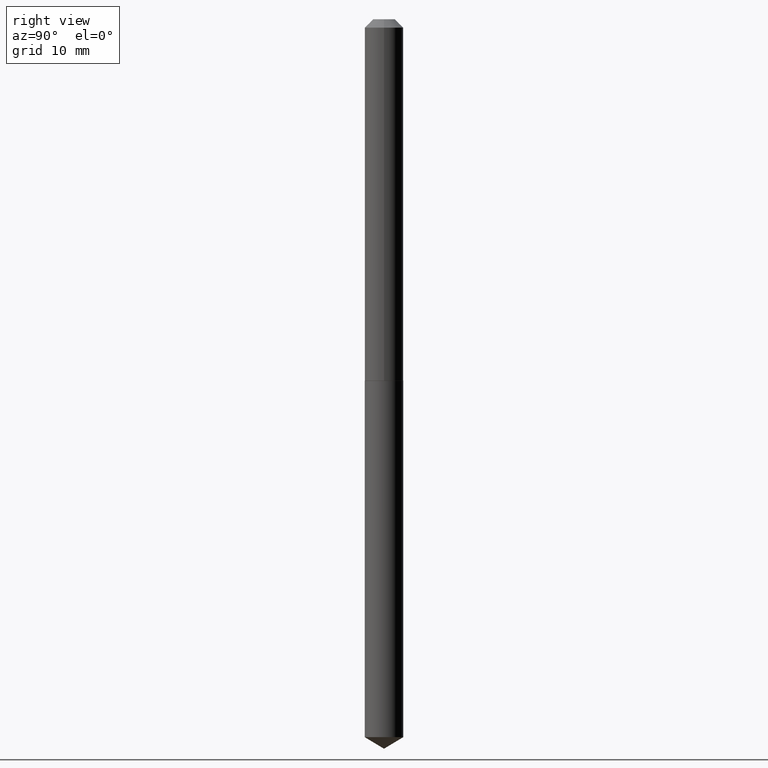
[diagram: clean part render]
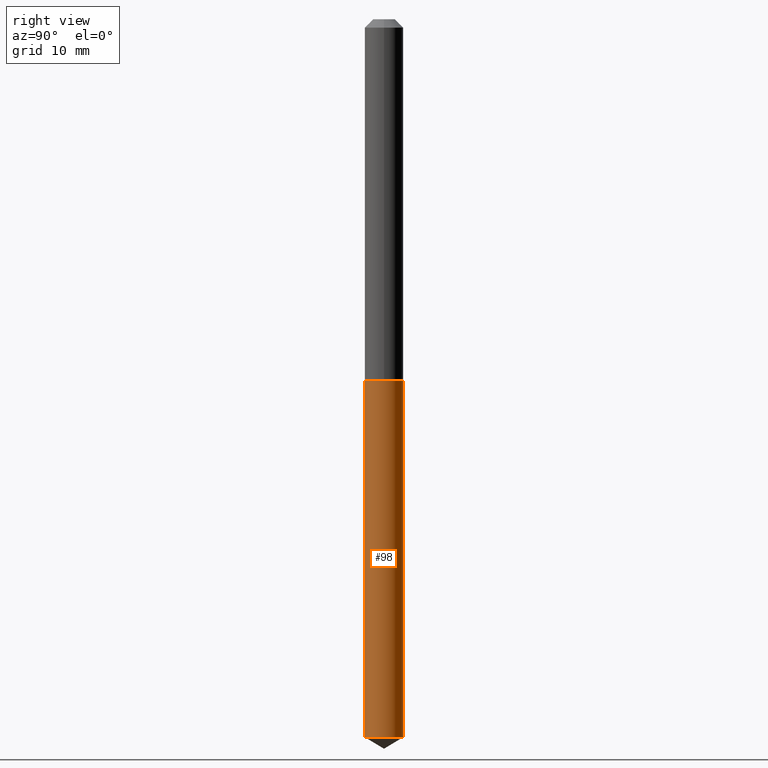
[diagram: same view with one face highlighted and labeled with its STEP entity id]
A machine part, right view. The second image highlights one B-rep face of the part: STEP entity #98.
In plain terms, the highlighted cylindrical surface (edge-blend (fillet) strip) has radius 1.8504 mm, axis along (-0, 0, 1).
Its self-contained STEP definition (entity closure, byte-faithful):
#77 = EDGE_CURVE ( 'NONE', #231, #227, #280, .T. ) ;
#81 = EDGE_CURVE ( 'NONE', #166, #227, #388, .T. ) ;
#84 = ORIENTED_EDGE ( 'NONE', *, *, #77, .T. ) ;
#97 = CARTESIAN_POINT ( 'NONE',  ( 6.632502913006848592E-29, -9.469227029340106795E-15, -2.712127303903842268 ) ) ;
#98 = ADVANCED_FACE ( 'NONE', ( #319 ), #285, .T. ) ;
#105 = DIRECTION ( 'NONE',  ( -2.445528388085863284E-29, 3.491396014170113419E-15, 1.000000000000000000 ) ) ;
#112 = DIRECTION ( 'NONE',  ( -2.445528388085863284E-29, 3.491396014170113419E-15, 1.000000000000000000 ) ) ;
#114 = DIRECTION ( 'NONE',  ( -6.982962677686265922E-15, -1.000000000000000000, 3.749962928845934523E-15 ) ) ;
#121 = LINE ( 'NONE', #338, #325 ) ;
#136 = EDGE_LOOP ( 'NONE', ( #178, #84, #198, #271 ) ) ;
#141 = DIRECTION ( 'NONE',  ( -2.445528388085863284E-29, 3.491396014170113419E-15, 1.000000000000000000 ) ) ;
#148 = DIRECTION ( 'NONE',  ( -6.982962677686265133E-15, -1.000000000000000000, 0.000000000000000000 ) ) ;
#166 = VERTEX_POINT ( 'NONE', #335 ) ;
#178 = ORIENTED_EDGE ( 'NONE', *, *, #204, .T. ) ;
#183 = DIRECTION ( 'NONE',  ( -2.445528388085863284E-29, 3.491396014170113419E-15, 1.000000000000000000 ) ) ;
#190 = VECTOR ( 'NONE', #112, 39.37007874015748143 ) ;
#197 = CARTESIAN_POINT ( 'NONE',  ( 3.340999483010132766E-29, -4.770061805127504889E-15, -1.366199999999999859 ) ) ;
#198 = ORIENTED_EDGE ( 'NONE', *, *, #81, .F. ) ;
#204 = EDGE_CURVE ( 'NONE', #373, #231, #362, .T. ) ;
#227 = VERTEX_POINT ( 'NONE', #357 ) ;
#231 = VERTEX_POINT ( 'NONE', #300 ) ;
#237 = DIRECTION ( 'NONE',  ( -2.445528388085863284E-29, 3.491396014170113419E-15, 1.000000000000000000 ) ) ;
#240 = EDGE_CURVE ( 'NONE', #373, #166, #121, .T. ) ;
#265 = CARTESIAN_POINT ( 'NONE',  ( -5.087088310693781180E-16, -0.07285000000000946274, -2.712127303903842268 ) ) ;
#271 = ORIENTED_EDGE ( 'NONE', *, *, #240, .F. ) ;
#280 = LINE ( 'NONE', #372, #190 ) ;
#285 = CYLINDRICAL_SURFACE ( 'NONE', #290, 0.07284999999999999809 ) ;
#290 = AXIS2_PLACEMENT_3D ( 'NONE', #197, #141, #114 ) ;
#291 = DIRECTION ( 'NONE',  ( -6.982962677686265922E-15, -1.000000000000000000, 3.749962928845934523E-15 ) ) ;
#300 = CARTESIAN_POINT ( 'NONE',  ( 5.176303830012991375E-16, 0.07284999999999051956, -2.712127303903842268 ) ) ;
#319 = FACE_OUTER_BOUND ( 'NONE', #136, .T. ) ;
#325 = VECTOR ( 'NONE', #237, 39.37007874015748143 ) ;
#335 = CARTESIAN_POINT ( 'NONE',  ( -5.087088310694110530E-16, -0.07285000000000477205, -1.366199999999999415 ) ) ;
#338 = CARTESIAN_POINT ( 'NONE',  ( -5.087088310694110530E-16, -0.07285000000000477205, -1.366199999999999415 ) ) ;
#345 = CARTESIAN_POINT ( 'NONE',  ( 3.340999483010132766E-29, -4.770061805127504889E-15, -1.366199999999999859 ) ) ;
#357 = CARTESIAN_POINT ( 'NONE',  ( 5.176303830012994334E-16, 0.07284999999999522413, -1.366200000000000081 ) ) ;
#360 = AXIS2_PLACEMENT_3D ( 'NONE', #345, #105, #291 ) ;
#362 = CIRCLE ( 'NONE', #382, 0.07285000000000001197 ) ;
#372 = CARTESIAN_POINT ( 'NONE',  ( 5.176303830012663012E-16, 0.07284999999999522413, -1.366200000000000081 ) ) ;
#373 = VERTEX_POINT ( 'NONE', #265 ) ;
#382 = AXIS2_PLACEMENT_3D ( 'NONE', #97, #183, #148 ) ;
#388 = CIRCLE ( 'NONE', #360, 0.07284999999999999809 ) ;